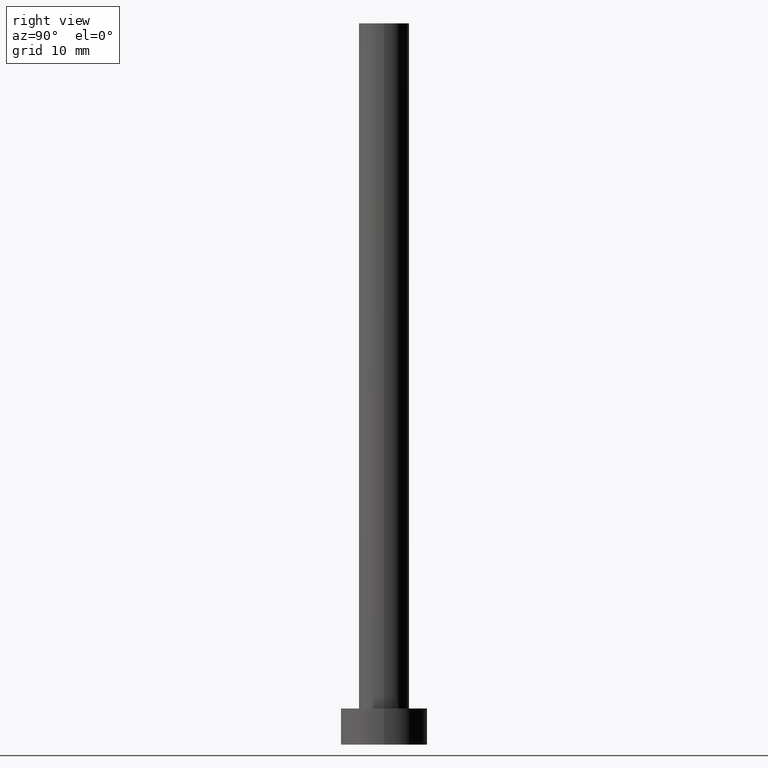
[diagram: clean part render]
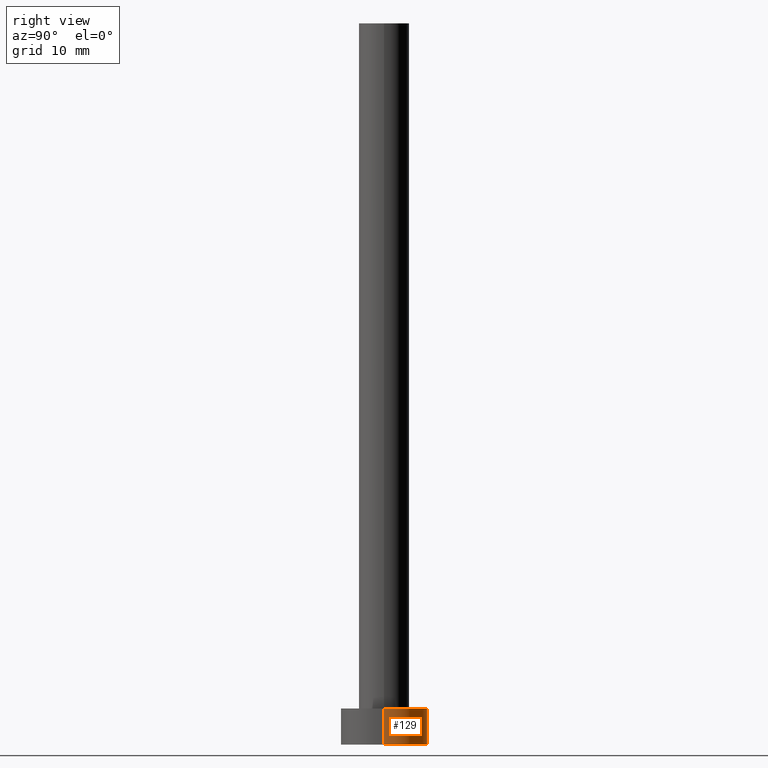
[diagram: same view with one face highlighted and labeled with its STEP entity id]
A machine part, right view. The second image highlights one B-rep face of the part: STEP entity #129.
In plain terms, the highlighted cylindrical surface (partial cylindrical patch) has radius 6 mm, axis along (-0, -0, -1).
Its self-contained STEP definition (entity closure, byte-faithful):
#4 = AXIS2_PLACEMENT_3D ( 'NONE', #9, #80, #176 ) ;
#9 = CARTESIAN_POINT ( 'NONE',  ( 0.000000000000000000, 0.000000000000000000, 5.000000000000000000 ) ) ;
#18 = VERTEX_POINT ( 'NONE', #170 ) ;
#26 = DIRECTION ( 'NONE',  ( -1.000000000000000000, 0.000000000000000000, 0.000000000000000000 ) ) ;
#47 = FACE_OUTER_BOUND ( 'NONE', #187, .T. ) ;
#49 = CIRCLE ( 'NONE', #227, 6.000000000000000888 ) ;
#52 = CARTESIAN_POINT ( 'NONE',  ( 6.000000000000000888, 7.347880794884120722E-16, 5.000000000000000000 ) ) ;
#57 = CARTESIAN_POINT ( 'NONE',  ( 6.000000000000000888, 7.347880794884120722E-16, 5.000000000000000000 ) ) ;
#64 = ORIENTED_EDGE ( 'NONE', *, *, #196, .F. ) ;
#66 = VERTEX_POINT ( 'NONE', #108 ) ;
#70 = CARTESIAN_POINT ( 'NONE',  ( 6.000000000000000888, 7.347880794884120722E-16, 0.000000000000000000 ) ) ;
#80 = DIRECTION ( 'NONE',  ( 0.000000000000000000, 0.000000000000000000, 1.000000000000000000 ) ) ;
#89 = CARTESIAN_POINT ( 'NONE',  ( 0.000000000000000000, 0.000000000000000000, 5.000000000000000000 ) ) ;
#106 = CYLINDRICAL_SURFACE ( 'NONE', #146, 6.000000000000000888 ) ;
#108 = CARTESIAN_POINT ( 'NONE',  ( -6.000000000000000888, 0.000000000000000000, 0.000000000000000000 ) ) ;
#113 = EDGE_CURVE ( 'NONE', #130, #66, #49, .T. ) ;
#123 = ORIENTED_EDGE ( 'NONE', *, *, #220, .T. ) ;
#129 = ADVANCED_FACE ( 'NONE', ( #47 ), #106, .T. ) ;
#130 = VERTEX_POINT ( 'NONE', #70 ) ;
#131 = ORIENTED_EDGE ( 'NONE', *, *, #113, .T. ) ;
#146 = AXIS2_PLACEMENT_3D ( 'NONE', #89, #239, #26 ) ;
#152 = CIRCLE ( 'NONE', #4, 6.000000000000000888 ) ;
#154 = VERTEX_POINT ( 'NONE', #57 ) ;
#164 = VECTOR ( 'NONE', #248, 1000.000000000000000 ) ;
#170 = CARTESIAN_POINT ( 'NONE',  ( -6.000000000000000888, 0.000000000000000000, 5.000000000000000000 ) ) ;
#176 = DIRECTION ( 'NONE',  ( 1.000000000000000000, 0.000000000000000000, 0.000000000000000000 ) ) ;
#187 = EDGE_LOOP ( 'NONE', ( #201, #123, #131, #64 ) ) ;
#192 = CARTESIAN_POINT ( 'NONE',  ( -6.000000000000000888, 0.000000000000000000, 5.000000000000000000 ) ) ;
#194 = LINE ( 'NONE', #192, #252 ) ;
#196 = EDGE_CURVE ( 'NONE', #18, #66, #194, .T. ) ;
#201 = ORIENTED_EDGE ( 'NONE', *, *, #213, .F. ) ;
#203 = DIRECTION ( 'NONE',  ( 0.000000000000000000, 0.000000000000000000, 1.000000000000000000 ) ) ;
#204 = DIRECTION ( 'NONE',  ( 1.000000000000000000, 0.000000000000000000, 0.000000000000000000 ) ) ;
#213 = EDGE_CURVE ( 'NONE', #154, #18, #152, .T. ) ;
#220 = EDGE_CURVE ( 'NONE', #154, #130, #233, .T. ) ;
#221 = CARTESIAN_POINT ( 'NONE',  ( 0.000000000000000000, 0.000000000000000000, 0.000000000000000000 ) ) ;
#227 = AXIS2_PLACEMENT_3D ( 'NONE', #221, #203, #204 ) ;
#233 = LINE ( 'NONE', #52, #164 ) ;
#239 = DIRECTION ( 'NONE',  ( -0.000000000000000000, -0.000000000000000000, -1.000000000000000000 ) ) ;
#248 = DIRECTION ( 'NONE',  ( -0.000000000000000000, -0.000000000000000000, -1.000000000000000000 ) ) ;
#250 = DIRECTION ( 'NONE',  ( -0.000000000000000000, -0.000000000000000000, -1.000000000000000000 ) ) ;
#252 = VECTOR ( 'NONE', #250, 1000.000000000000000 ) ;